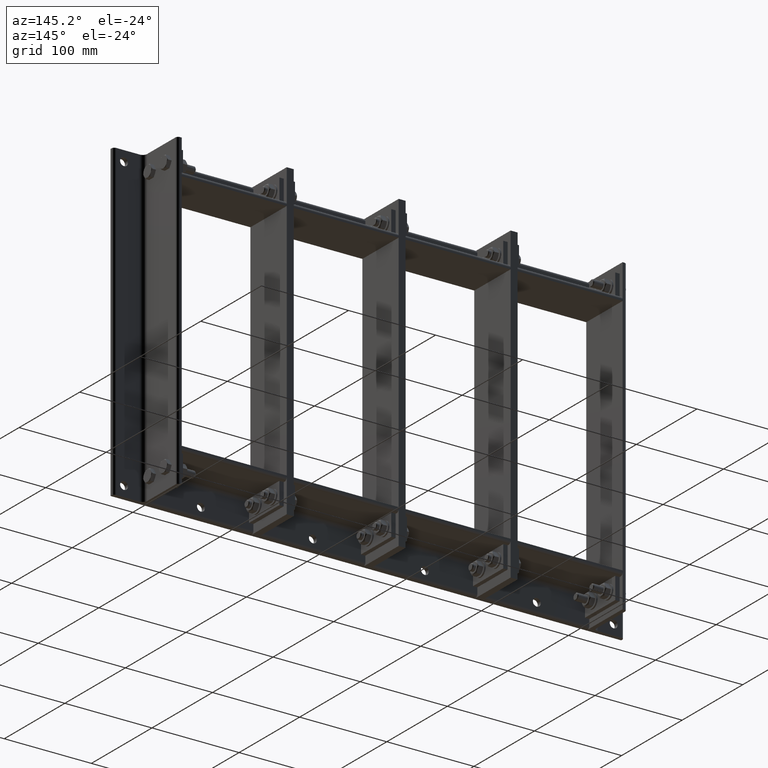
[diagram: clean part render]
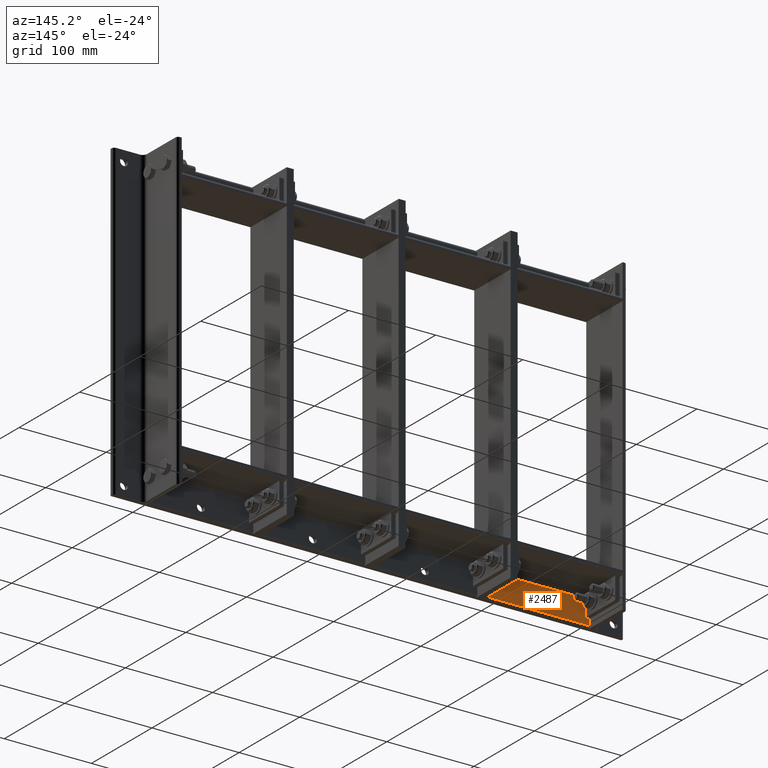
[diagram: same view with one face highlighted and labeled with its STEP entity id]
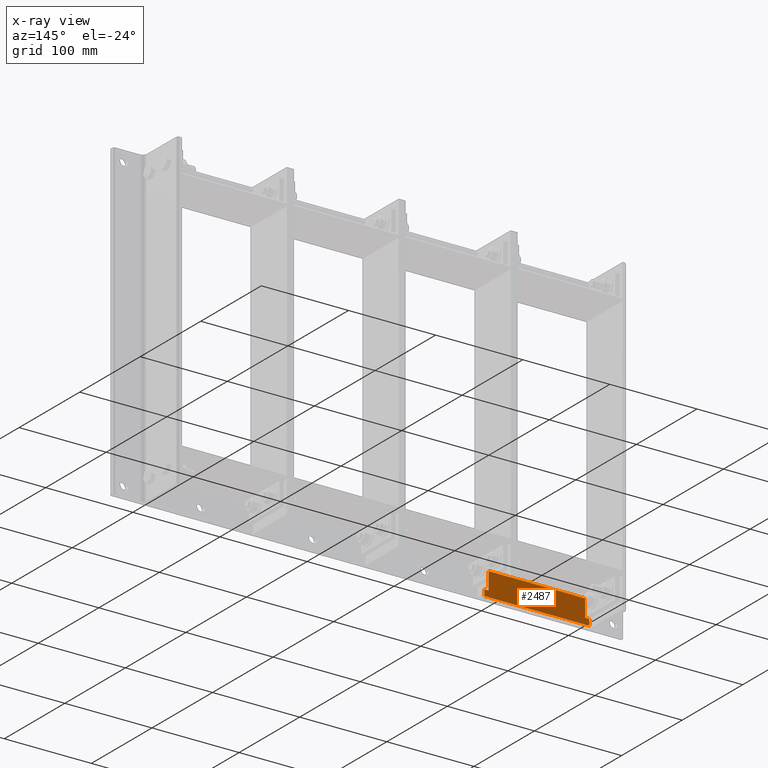
[diagram: x-ray of the same camera — body ghosted, the highlighted face saturated]
A machine part, auxiliary view. The second image highlights one B-rep face of the part: STEP entity #2487.
The next image is the same camera in x-ray: the body ghosted, the highlighted face saturated — about 0% of this face is hidden behind the body in this view.
In plain terms, the highlighted planar face has unit normal (0, 1, 0).
Its self-contained STEP definition (entity closure, byte-faithful):
#2184=CARTESIAN_POINT('',(23.499999999999996,5.0,60.25));
#2185=VERTEX_POINT('',#2184);
#2186=CARTESIAN_POINT('',(28.0,5.0,60.25));
#2187=DIRECTION('',(0.0,-1.0,0.0));
#2188=DIRECTION('',(1.0,0.0,0.0));
#2189=AXIS2_PLACEMENT_3D('',#2186,#2187,#2188);
#2190=CIRCLE('',#2189,4.5);
#2191=EDGE_CURVE('',#2185,#2185,#2190,.T.);
#2324=CARTESIAN_POINT('',(30.0,4.999999999999998,5.000000000000018));
#2325=VERTEX_POINT('',#2324);
#2334=CARTESIAN_POINT('',(30.0,4.999999999999998,0.0));
#2335=VERTEX_POINT('',#2334);
#2336=CARTESIAN_POINT('',(30.0,4.999999999999998,0.0));
#2337=DIRECTION('',(0.0,0.0,1.0));
#2338=VECTOR('',#2337,5.000000000000018);
#2339=LINE('',#2336,#2338);
#2340=EDGE_CURVE('',#2335,#2325,#2339,.T.);
#2405=CARTESIAN_POINT('',(9.999999999999986,4.999999999999995,5.000000000000018));
#2406=VERTEX_POINT('',#2405);
#2414=CARTESIAN_POINT('',(30.0,4.999999999999999,5.000000000000018));
#2415=DIRECTION('',(-1.0,0.0,0.0));
#2416=VECTOR('',#2415,20.000000000000014);
#2417=LINE('',#2414,#2416);
#2418=EDGE_CURVE('',#2325,#2406,#2417,.T.);
#2429=CARTESIAN_POINT('',(0.0,4.999999999999993,0.0));
#2430=DIRECTION('',(0.0,1.0,0.0));
#2431=DIRECTION('',(0.0,0.0,1.0));
#2432=AXIS2_PLACEMENT_3D('',#2429,#2430,#2431);
#2433=PLANE('',#2432);
#2434=ORIENTED_EDGE('',*,*,#2340,.T.);
#2435=ORIENTED_EDGE('',*,*,#2418,.T.);
#2436=CARTESIAN_POINT('',(9.999999999999986,4.999999999999995,115.49999999999999));
#2437=VERTEX_POINT('',#2436);
#2438=CARTESIAN_POINT('',(9.999999999999988,4.999999999999995,115.49999999999999));
#2439=DIRECTION('',(0.0,0.0,-1.0));
#2440=VECTOR('',#2439,110.49999999999997);
#2441=LINE('',#2438,#2440);
#2442=EDGE_CURVE('',#2437,#2406,#2441,.T.);
#2443=ORIENTED_EDGE('',*,*,#2442,.F.);
#2444=CARTESIAN_POINT('',(30.0,4.999999999999998,115.49999999999999));
#2445=VERTEX_POINT('',#2444);
#2446=CARTESIAN_POINT('',(9.999999999999986,4.999999999999996,115.49999999999999));
#2447=DIRECTION('',(1.0,0.0,0.0));
#2448=VECTOR('',#2447,20.000000000000014);
#2449=LINE('',#2446,#2448);
#2450=EDGE_CURVE('',#2437,#2445,#2449,.T.);
#2451=ORIENTED_EDGE('',*,*,#2450,.T.);
#2452=CARTESIAN_POINT('',(30.0,4.999999999999998,120.5));
#2453=VERTEX_POINT('',#2452);
#2454=CARTESIAN_POINT('',(30.0,4.999999999999998,115.49999999999999));
#2455=DIRECTION('',(0.0,0.0,1.0));
#2456=VECTOR('',#2455,5.000000000000014);
#2457=LINE('',#2454,#2456);
#2458=EDGE_CURVE('',#2445,#2453,#2457,.T.);
#2459=ORIENTED_EDGE('',*,*,#2458,.T.);
#2460=CARTESIAN_POINT('',(37.0,4.999999999999999,120.5));
#2461=VERTEX_POINT('',#2460);
#2462=CARTESIAN_POINT('',(30.0,4.999999999999998,120.5));
#2463=DIRECTION('',(1.0,0.0,0.0));
#2464=VECTOR('',#2463,7.0);
#2465=LINE('',#2462,#2464);
#2466=EDGE_CURVE('',#2453,#2461,#2465,.T.);
#2467=ORIENTED_EDGE('',*,*,#2466,.T.);
#2468=CARTESIAN_POINT('',(37.0,4.999999999999999,0.0));
#2469=VERTEX_POINT('',#2468);
#2470=CARTESIAN_POINT('',(37.0,4.999999999999999,0.0));
#2471=DIRECTION('',(0.0,0.0,1.0));
#2472=VECTOR('',#2471,120.5);
#2473=LINE('',#2470,#2472);
#2474=EDGE_CURVE('',#2469,#2461,#2473,.T.);
#2475=ORIENTED_EDGE('',*,*,#2474,.F.);
#2476=CARTESIAN_POINT('',(37.0,4.999999999999999,0.0));
#2477=DIRECTION('',(-1.0,0.0,0.0));
#2478=VECTOR('',#2477,7.0);
#2479=LINE('',#2476,#2478);
#2480=EDGE_CURVE('',#2469,#2335,#2479,.T.);
#2481=ORIENTED_EDGE('',*,*,#2480,.T.);
#2482=EDGE_LOOP('',(#2434,#2435,#2443,#2451,#2459,#2467,#2475,#2481));
#2483=FACE_OUTER_BOUND('',#2482,.T.);
#2484=ORIENTED_EDGE('',*,*,#2191,.T.);
#2485=EDGE_LOOP('',(#2484));
#2486=FACE_BOUND('',#2485,.T.);
#2487=ADVANCED_FACE('',(#2483,#2486),#2433,.T.);